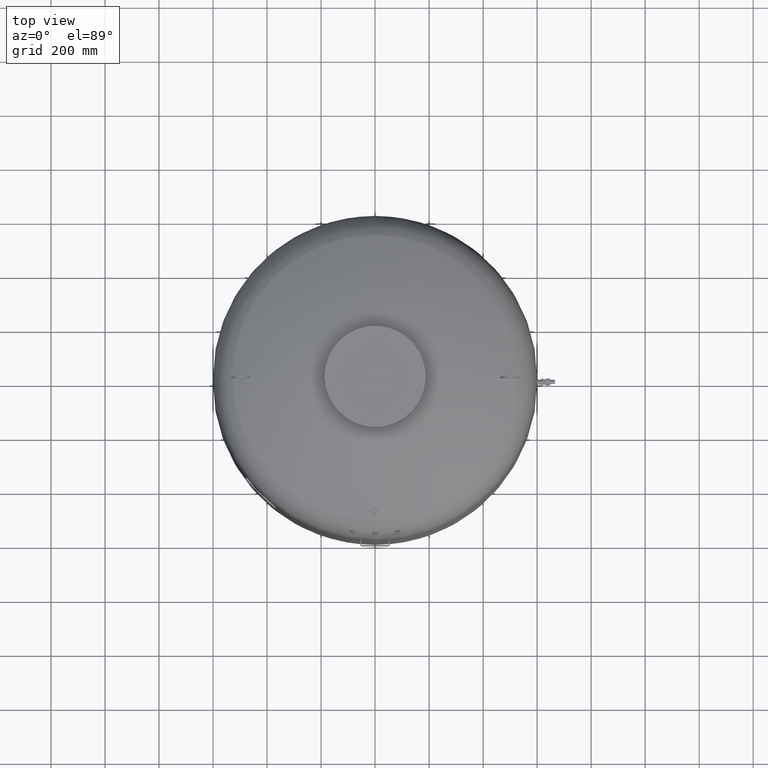
[diagram: clean part render]
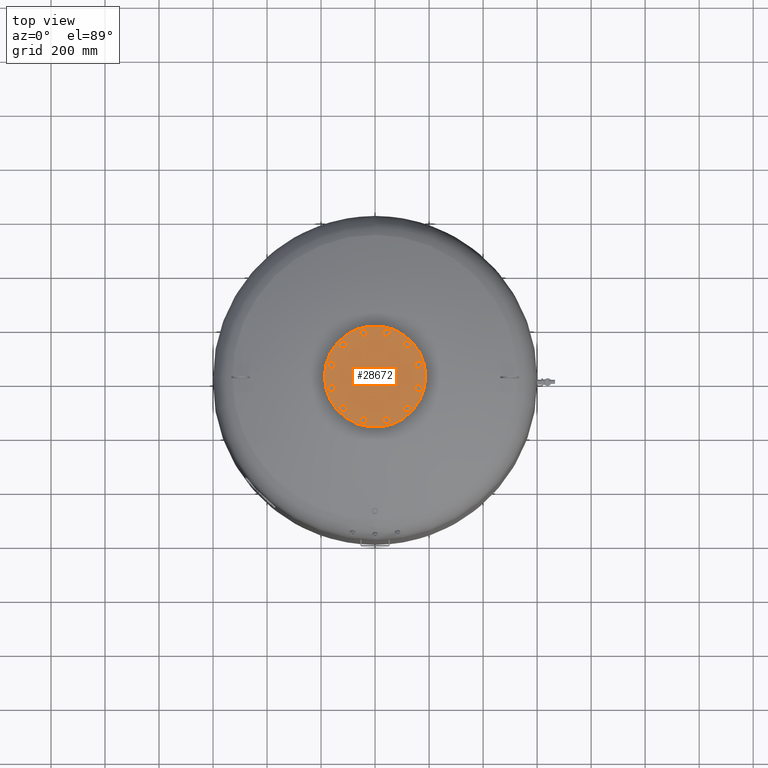
[diagram: same view with one face highlighted and labeled with its STEP entity id]
A machine part, top view. The second image highlights one B-rep face of the part: STEP entity #28672.
In plain terms, the highlighted planar face has unit normal (0, 0, 1).
Its self-contained STEP definition (entity closure, byte-faithful):
#20910=CARTESIAN_POINT('',(-187.500000000000000,0.0,2050.0));
#20911=VERTEX_POINT('',#20910);
#20927=CARTESIAN_POINT('',(187.500000000000000,-2.296137E-014,2050.0));
#20928=VERTEX_POINT('',#20927);
#20935=CARTESIAN_POINT('',(0.0,0.0,2050.0));
#20936=DIRECTION('',(0.0,0.0,-1.0));
#20937=DIRECTION('',(-1.0,0.0,0.0));
#20938=AXIS2_PLACEMENT_3D('',#20935,#20936,#20937);
#20939=CIRCLE('',#20938,187.500000000000000);
#20940=EDGE_CURVE('',#20928,#20911,#20939,.T.);
#26166=CARTESIAN_POINT('',(157.729139400922860,30.104983413641008,2050.0));
#26167=VERTEX_POINT('',#26166);
#26168=CARTESIAN_POINT('',(148.288440171855850,40.247625971983268,2050.0));
#26169=VERTEX_POINT('',#26168);
#26170=CARTESIAN_POINT('',(157.729139400922860,30.104983413641008,2050.0));
#26171=DIRECTION('',(-0.681323780155013,0.731982176419128,0.0));
#26172=VECTOR('',#26171,13.856406460551090);
#26173=LINE('',#26170,#26172);
#26174=EDGE_CURVE('',#26167,#26169,#26173,.T.);
#26206=CARTESIAN_POINT('',(171.233275132485970,33.209547496330110,2050.0));
#26207=VERTEX_POINT('',#26206);
#26208=CARTESIAN_POINT('',(171.233275132485970,33.209547496330110,2050.0));
#26209=DIRECTION('',(-0.974577049973894,-0.224052613607123,0.0));
#26210=VECTOR('',#26209,13.856406460551119);
#26211=LINE('',#26208,#26210);
#26212=EDGE_CURVE('',#26207,#26167,#26211,.T.);
#26237=CARTESIAN_POINT('',(175.296711634982050,46.456754137361422,2050.0));
#26238=VERTEX_POINT('',#26237);
#26239=CARTESIAN_POINT('',(175.296711634982050,46.456754137361422,2050.0));
#26240=DIRECTION('',(-0.293253269818881,-0.956034790026249,0.0));
#26241=VECTOR('',#26240,13.856406460551076);
#26242=LINE('',#26239,#26241);
#26243=EDGE_CURVE('',#26238,#26207,#26242,.T.);
#26268=CARTESIAN_POINT('',(152.351876674351930,53.494832613014587,2050.0));
#26269=VERTEX_POINT('',#26268);
#26270=CARTESIAN_POINT('',(148.288440171855850,40.247625971983268,2050.0));
#26271=DIRECTION('',(0.293253269818881,0.956034790026249,0.0));
#26272=VECTOR('',#26271,13.856406460551083);
#26273=LINE('',#26270,#26272);
#26274=EDGE_CURVE('',#26169,#26269,#26273,.T.);
#26299=CARTESIAN_POINT('',(165.856012405915040,56.599396695703689,2050.0));
#26300=VERTEX_POINT('',#26299);
#26301=CARTESIAN_POINT('',(152.351876674351930,53.494832613014587,2050.0));
#26302=DIRECTION('',(0.974577049973894,0.224052613607123,0.0));
#26303=VECTOR('',#26302,13.856406460551119);
#26304=LINE('',#26301,#26303);
#26305=EDGE_CURVE('',#26269,#26300,#26304,.T.);
#26330=CARTESIAN_POINT('',(165.856012405915040,56.599396695703689,2050.0));
#26331=DIRECTION('',(0.681323780155012,-0.731982176419129,0.0));
#26332=VECTOR('',#26331,13.856406460551096);
#26333=LINE('',#26330,#26332);
#26334=EDGE_CURVE('',#26300,#26238,#26333,.T.);
#26366=CARTESIAN_POINT('',(121.544949931435720,104.936250117183760,2050.0));
#26367=VERTEX_POINT('',#26366);
#26368=CARTESIAN_POINT('',(108.297743290404380,108.999686619679820,2050.0));
#26369=VERTEX_POINT('',#26368);
#26370=CARTESIAN_POINT('',(121.544949931435720,104.936250117183760,2050.0));
#26371=DIRECTION('',(-0.956034790026250,0.293253269818880,0.0));
#26372=VECTOR('',#26371,13.856406460551101);
#26373=LINE('',#26370,#26372);
#26374=EDGE_CURVE('',#26367,#26369,#26373,.T.);
#26406=CARTESIAN_POINT('',(131.687592489777960,114.376949346250780,2050.0));
#26407=VERTEX_POINT('',#26406);
#26408=CARTESIAN_POINT('',(131.687592489777960,114.376949346250780,2050.0));
#26409=DIRECTION('',(-0.731982176419127,-0.681323780155014,0.0));
#26410=VECTOR('',#26409,13.856406460551080);
#26411=LINE('',#26408,#26410);
#26412=EDGE_CURVE('',#26407,#26367,#26411,.T.);
#26437=CARTESIAN_POINT('',(128.583028407088880,127.881085077813880,2050.0));
#26438=VERTEX_POINT('',#26437);
#26439=CARTESIAN_POINT('',(128.583028407088880,127.881085077813880,2050.0));
#26440=DIRECTION('',(0.224052613607122,-0.974577049973894,0.0));
#26441=VECTOR('',#26440,13.856406460551099);
#26442=LINE('',#26439,#26441);
#26443=EDGE_CURVE('',#26438,#26407,#26442,.T.);
#26468=CARTESIAN_POINT('',(105.193179207715300,122.503822351242900,2050.0));
#26469=VERTEX_POINT('',#26468);
#26470=CARTESIAN_POINT('',(108.297743290404380,108.999686619679820,2050.0));
#26471=DIRECTION('',(-0.224052613607122,0.974577049973894,0.0));
#26472=VECTOR('',#26471,13.856406460551087);
#26473=LINE('',#26470,#26472);
#26474=EDGE_CURVE('',#26369,#26469,#26473,.T.);
#26499=CARTESIAN_POINT('',(115.335821766057560,131.944521580309950,2050.0));
#26500=VERTEX_POINT('',#26499);
#26501=CARTESIAN_POINT('',(105.193179207715300,122.503822351242900,2050.0));
#26502=DIRECTION('',(0.731982176419127,0.681323780155014,0.0));
#26503=VECTOR('',#26502,13.856406460551121);
#26504=LINE('',#26501,#26503);
#26505=EDGE_CURVE('',#26469,#26500,#26504,.T.);
#26530=CARTESIAN_POINT('',(115.335821766057560,131.944521580309950,2050.0));
#26531=DIRECTION('',(0.956034790026249,-0.293253269818881,0.0));
#26532=VECTOR('',#26531,13.856406460551076);
#26533=LINE('',#26530,#26532);
#26534=EDGE_CURVE('',#26500,#26438,#26533,.T.);
#26566=CARTESIAN_POINT('',(52.792889283739193,151.649933345076730,2050.0));
#26567=VERTEX_POINT('',#26566);
#26568=CARTESIAN_POINT('',(39.288753552176118,148.545369262387680,2050.0));
#26569=VERTEX_POINT('',#26568);
#26570=CARTESIAN_POINT('',(52.792889283739193,151.649933345076730,2050.0));
#26571=DIRECTION('',(-0.974577049973894,-0.224052613607120,0.0));
#26572=VECTOR('',#26571,13.856406460551073);
#26573=LINE('',#26570,#26572);
#26574=EDGE_CURVE('',#26567,#26569,#26573,.T.);
#26606=CARTESIAN_POINT('',(56.856325786235274,164.897139986108100,2050.0));
#26607=VERTEX_POINT('',#26606);
#26608=CARTESIAN_POINT('',(56.856325786235274,164.897139986108100,2050.0));
#26609=DIRECTION('',(-0.293253269818881,-0.956034790026249,0.0));
#26610=VECTOR('',#26609,13.856406460551133);
#26611=LINE('',#26608,#26610);
#26612=EDGE_CURVE('',#26607,#26567,#26611,.T.);
#26637=CARTESIAN_POINT('',(47.415626557168267,175.039782544450330,2050.0));
#26638=VERTEX_POINT('',#26637);
#26639=CARTESIAN_POINT('',(47.415626557168267,175.039782544450330,2050.0));
#26640=DIRECTION('',(0.681323780155014,-0.731982176419128,0.0));
#26641=VECTOR('',#26640,13.856406460551069);
#26642=LINE('',#26639,#26641);
#26643=EDGE_CURVE('',#26638,#26607,#26642,.T.);
#26668=CARTESIAN_POINT('',(29.848054323109103,158.688011820729910,2050.0));
#26669=VERTEX_POINT('',#26668);
#26670=CARTESIAN_POINT('',(39.288753552176118,148.545369262387680,2050.0));
#26671=DIRECTION('',(-0.681323780155014,0.731982176419127,0.0));
#26672=VECTOR('',#26671,13.856406460551076);
#26673=LINE('',#26670,#26672);
#26674=EDGE_CURVE('',#26569,#26669,#26673,.T.);
#26699=CARTESIAN_POINT('',(33.911490825605156,171.935218461761250,2050.0));
#26700=VERTEX_POINT('',#26699);
#26701=CARTESIAN_POINT('',(29.848054323109103,158.688011820729910,2050.0));
#26702=DIRECTION('',(0.293253269818879,0.956034790026250,0.0));
#26703=VECTOR('',#26702,13.856406460551097);
#26704=LINE('',#26701,#26703);
#26705=EDGE_CURVE('',#26669,#26700,#26704,.T.);
#26730=CARTESIAN_POINT('',(33.911490825605156,171.935218461761250,2050.0));
#26731=DIRECTION('',(0.974577049973894,0.224052613607121,0.0));
#26732=VECTOR('',#26731,13.856406460551113);
#26733=LINE('',#26730,#26732);
#26734=EDGE_CURVE('',#26700,#26638,#26733,.T.);
#26766=CARTESIAN_POINT('',(-30.104983413641008,157.729139400922860,2050.0));
#26767=VERTEX_POINT('',#26766);
#26768=CARTESIAN_POINT('',(-40.247625971983268,148.288440171855850,2050.0));
#26769=VERTEX_POINT('',#26768);
#26770=CARTESIAN_POINT('',(-30.104983413641008,157.729139400922860,2050.0));
#26771=DIRECTION('',(-0.731982176419128,-0.681323780155013,0.0));
#26772=VECTOR('',#26771,13.856406460551090);
#26773=LINE('',#26770,#26772);
#26774=EDGE_CURVE('',#26767,#26769,#26773,.T.);
#26806=CARTESIAN_POINT('',(-33.209547496330110,171.233275132485970,2050.0));
#26807=VERTEX_POINT('',#26806);
#26808=CARTESIAN_POINT('',(-33.209547496330110,171.233275132485970,2050.0));
#26809=DIRECTION('',(0.224052613607123,-0.974577049973894,0.0));
#26810=VECTOR('',#26809,13.856406460551119);
#26811=LINE('',#26808,#26810);
#26812=EDGE_CURVE('',#26807,#26767,#26811,.T.);
#26837=CARTESIAN_POINT('',(-46.456754137361422,175.296711634982050,2050.0));
#26838=VERTEX_POINT('',#26837);
#26839=CARTESIAN_POINT('',(-46.456754137361422,175.296711634982050,2050.0));
#26840=DIRECTION('',(0.956034790026249,-0.293253269818881,0.0));
#26841=VECTOR('',#26840,13.856406460551076);
#26842=LINE('',#26839,#26841);
#26843=EDGE_CURVE('',#26838,#26807,#26842,.T.);
#26868=CARTESIAN_POINT('',(-53.494832613014587,152.351876674351930,2050.0));
#26869=VERTEX_POINT('',#26868);
#26870=CARTESIAN_POINT('',(-40.247625971983268,148.288440171855850,2050.0));
#26871=DIRECTION('',(-0.956034790026249,0.293253269818881,0.0));
#26872=VECTOR('',#26871,13.856406460551083);
#26873=LINE('',#26870,#26872);
#26874=EDGE_CURVE('',#26769,#26869,#26873,.T.);
#26899=CARTESIAN_POINT('',(-56.599396695703689,165.856012405915040,2050.0));
#26900=VERTEX_POINT('',#26899);
#26901=CARTESIAN_POINT('',(-53.494832613014587,152.351876674351930,2050.0));
#26902=DIRECTION('',(-0.224052613607123,0.974577049973894,0.0));
#26903=VECTOR('',#26902,13.856406460551119);
#26904=LINE('',#26901,#26903);
#26905=EDGE_CURVE('',#26869,#26900,#26904,.T.);
#26930=CARTESIAN_POINT('',(-56.599396695703689,165.856012405915040,2050.0));
#26931=DIRECTION('',(0.731982176419129,0.681323780155012,0.0));
#26932=VECTOR('',#26931,13.856406460551096);
#26933=LINE('',#26930,#26932);
#26934=EDGE_CURVE('',#26900,#26838,#26933,.T.);
#26966=CARTESIAN_POINT('',(-104.936250117183700,121.544949931435750,2050.0));
#26967=VERTEX_POINT('',#26966);
#26968=CARTESIAN_POINT('',(-108.999686619679760,108.297743290404440,2050.0));
#26969=VERTEX_POINT('',#26968);
#26970=CARTESIAN_POINT('',(-104.936250117183700,121.544949931435750,2050.0));
#26971=DIRECTION('',(-0.293253269818880,-0.956034790026249,0.0));
#26972=VECTOR('',#26971,13.856406460551073);
#26973=LINE('',#26970,#26972);
#26974=EDGE_CURVE('',#26967,#26969,#26973,.T.);
#27006=CARTESIAN_POINT('',(-114.376949346250730,131.687592489778010,2050.0));
#27007=VERTEX_POINT('',#27006);
#27008=CARTESIAN_POINT('',(-114.376949346250730,131.687592489778010,2050.0));
#27009=DIRECTION('',(0.681323780155013,-0.731982176419128,0.0));
#27010=VECTOR('',#27009,13.856406460551101);
#27011=LINE('',#27008,#27010);
#27012=EDGE_CURVE('',#27007,#26967,#27011,.T.);
#27037=CARTESIAN_POINT('',(-127.881085077813810,128.583028407088930,2050.0));
#27038=VERTEX_POINT('',#27037);
#27039=CARTESIAN_POINT('',(-127.881085077813810,128.583028407088930,2050.0));
#27040=DIRECTION('',(0.974577049973894,0.224052613607122,0.0));
#27041=VECTOR('',#27040,13.856406460551087);
#27042=LINE('',#27039,#27041);
#27043=EDGE_CURVE('',#27038,#27007,#27042,.T.);
#27068=CARTESIAN_POINT('',(-122.503822351242850,105.193179207715360,2050.0));
#27069=VERTEX_POINT('',#27068);
#27070=CARTESIAN_POINT('',(-108.999686619679760,108.297743290404440,2050.0));
#27071=DIRECTION('',(-0.974577049973894,-0.224052613607122,0.0));
#27072=VECTOR('',#27071,13.856406460551087);
#27073=LINE('',#27070,#27072);
#27074=EDGE_CURVE('',#26969,#27069,#27073,.T.);
#27099=CARTESIAN_POINT('',(-131.944521580309900,115.335821766057620,2050.0));
#27100=VERTEX_POINT('',#27099);
#27101=CARTESIAN_POINT('',(-122.503822351242850,105.193179207715360,2050.0));
#27102=DIRECTION('',(-0.681323780155014,0.731982176419127,0.0));
#27103=VECTOR('',#27102,13.856406460551121);
#27104=LINE('',#27101,#27103);
#27105=EDGE_CURVE('',#27069,#27100,#27104,.T.);
#27130=CARTESIAN_POINT('',(-131.944521580309900,115.335821766057620,2050.0));
#27131=DIRECTION('',(0.293253269818882,0.956034790026249,0.0));
#27132=VECTOR('',#27131,13.856406460551081);
#27133=LINE('',#27130,#27132);
#27134=EDGE_CURVE('',#27100,#27038,#27133,.T.);
#27166=CARTESIAN_POINT('',(-151.649933345076730,52.792889283739214,2050.0));
#27167=VERTEX_POINT('',#27166);
#27168=CARTESIAN_POINT('',(-148.545369262387650,39.288753552176125,2050.0));
#27169=VERTEX_POINT('',#27168);
#27170=CARTESIAN_POINT('',(-151.649933345076730,52.792889283739214,2050.0));
#27171=DIRECTION('',(0.224052613607122,-0.974577049973894,0.0));
#27172=VECTOR('',#27171,13.856406460551092);
#27173=LINE('',#27170,#27172);
#27174=EDGE_CURVE('',#27167,#27169,#27173,.T.);
#27206=CARTESIAN_POINT('',(-164.897139986108100,56.856325786235296,2050.0));
#27207=VERTEX_POINT('',#27206);
#27208=CARTESIAN_POINT('',(-164.897139986108100,56.856325786235296,2050.0));
#27209=DIRECTION('',(0.956034790026249,-0.293253269818881,0.0));
#27210=VECTOR('',#27209,13.856406460551133);
#27211=LINE('',#27208,#27210);
#27212=EDGE_CURVE('',#27207,#27167,#27211,.T.);
#27237=CARTESIAN_POINT('',(-175.039782544450300,47.415626557168260,2050.0));
#27238=VERTEX_POINT('',#27237);
#27239=CARTESIAN_POINT('',(-175.039782544450300,47.415626557168260,2050.0));
#27240=DIRECTION('',(0.731982176419126,0.681323780155016,0.0));
#27241=VECTOR('',#27240,13.856406460551069);
#27242=LINE('',#27239,#27241);
#27243=EDGE_CURVE('',#27238,#27207,#27242,.T.);
#27268=CARTESIAN_POINT('',(-158.688011820729910,29.848054323109110,2050.0));
#27269=VERTEX_POINT('',#27268);
#27270=CARTESIAN_POINT('',(-148.545369262387650,39.288753552176125,2050.0));
#27271=DIRECTION('',(-0.731982176419128,-0.681323780155013,0.0));
#27272=VECTOR('',#27271,13.856406460551096);
#27273=LINE('',#27270,#27272);
#27274=EDGE_CURVE('',#27169,#27269,#27273,.T.);
#27299=CARTESIAN_POINT('',(-171.935218461761250,33.911490825605171,2050.0));
#27300=VERTEX_POINT('',#27299);
#27301=CARTESIAN_POINT('',(-158.688011820729910,29.848054323109110,2050.0));
#27302=DIRECTION('',(-0.956034790026250,0.293253269818880,0.0));
#27303=VECTOR('',#27302,13.856406460551101);
#27304=LINE('',#27301,#27303);
#27305=EDGE_CURVE('',#27269,#27300,#27304,.T.);
#27330=CARTESIAN_POINT('',(-171.935218461761250,33.911490825605171,2050.0));
#27331=DIRECTION('',(-0.224052613607120,0.974577049973894,0.0));
#27332=VECTOR('',#27331,13.856406460551087);
#27333=LINE('',#27330,#27332);
#27334=EDGE_CURVE('',#27300,#27238,#27333,.T.);
#27366=CARTESIAN_POINT('',(-157.729139400922860,-30.104983413640987,2050.0));
#27367=VERTEX_POINT('',#27366);
#27368=CARTESIAN_POINT('',(-148.288440171855850,-40.247625971983247,2050.0));
#27369=VERTEX_POINT('',#27368);
#27370=CARTESIAN_POINT('',(-157.729139400922860,-30.104983413640987,2050.0));
#27371=DIRECTION('',(0.681323780155013,-0.731982176419128,0.0));
#27372=VECTOR('',#27371,13.856406460551090);
#27373=LINE('',#27370,#27372);
#27374=EDGE_CURVE('',#27367,#27369,#27373,.T.);
#27406=CARTESIAN_POINT('',(-171.233275132486000,-33.209547496330096,2050.0));
#27407=VERTEX_POINT('',#27406);
#27408=CARTESIAN_POINT('',(-171.233275132486000,-33.209547496330096,2050.0));
#27409=DIRECTION('',(0.974577049973894,0.224052613607123,0.0));
#27410=VECTOR('',#27409,13.856406460551147);
#27411=LINE('',#27408,#27410);
#27412=EDGE_CURVE('',#27407,#27367,#27411,.T.);
#27437=CARTESIAN_POINT('',(-175.296711634982050,-46.456754137361401,2050.0));
#27438=VERTEX_POINT('',#27437);
#27439=CARTESIAN_POINT('',(-175.296711634982050,-46.456754137361401,2050.0));
#27440=DIRECTION('',(0.293253269818880,0.956034790026250,0.0));
#27441=VECTOR('',#27440,13.856406460551062);
#27442=LINE('',#27439,#27441);
#27443=EDGE_CURVE('',#27438,#27407,#27442,.T.);
#27468=CARTESIAN_POINT('',(-152.351876674351960,-53.494832613014580,2050.0));
#27469=VERTEX_POINT('',#27468);
#27470=CARTESIAN_POINT('',(-148.288440171855850,-40.247625971983247,2050.0));
#27471=DIRECTION('',(-0.293253269818883,-0.956034790026249,0.0));
#27472=VECTOR('',#27471,13.856406460551106);
#27473=LINE('',#27470,#27472);
#27474=EDGE_CURVE('',#27369,#27469,#27473,.T.);
#27499=CARTESIAN_POINT('',(-165.856012405915070,-56.599396695703646,2050.0));
#27500=VERTEX_POINT('',#27499);
#27501=CARTESIAN_POINT('',(-152.351876674351960,-53.494832613014580,2050.0));
#27502=DIRECTION('',(-0.974577049973894,-0.224052613607121,0.0));
#27503=VECTOR('',#27502,13.856406460551110);
#27504=LINE('',#27501,#27503);
#27505=EDGE_CURVE('',#27469,#27500,#27504,.T.);
#27530=CARTESIAN_POINT('',(-165.856012405915070,-56.599396695703646,2050.0));
#27531=DIRECTION('',(-0.681323780155012,0.731982176419129,0.0));
#27532=VECTOR('',#27531,13.856406460551062);
#27533=LINE('',#27530,#27532);
#27534=EDGE_CURVE('',#27500,#27438,#27533,.T.);
#27566=CARTESIAN_POINT('',(-121.544949931435750,-104.936250117183680,2050.0));
#27567=VERTEX_POINT('',#27566);
#27568=CARTESIAN_POINT('',(-108.297743290404440,-108.999686619679760,2050.0));
#27569=VERTEX_POINT('',#27568);
#27570=CARTESIAN_POINT('',(-121.544949931435750,-104.936250117183680,2050.0));
#27571=DIRECTION('',(0.956034790026249,-0.293253269818882,0.0));
#27572=VECTOR('',#27571,13.856406460551081);
#27573=LINE('',#27570,#27572);
#27574=EDGE_CURVE('',#27567,#27569,#27573,.T.);
#27606=CARTESIAN_POINT('',(-131.687592489778010,-114.376949346250730,2050.0));
#27607=VERTEX_POINT('',#27606);
#27608=CARTESIAN_POINT('',(-131.687592489778010,-114.376949346250730,2050.0));
#27609=DIRECTION('',(0.731982176419127,0.681323780155014,0.0));
#27610=VECTOR('',#27609,13.856406460551121);
#27611=LINE('',#27608,#27610);
#27612=EDGE_CURVE('',#27607,#27567,#27611,.T.);
#27637=CARTESIAN_POINT('',(-128.583028407088930,-127.881085077813790,2050.0));
#27638=VERTEX_POINT('',#27637);
#27639=CARTESIAN_POINT('',(-128.583028407088930,-127.881085077813790,2050.0));
#27640=DIRECTION('',(-0.224052613607122,0.974577049973894,0.0));
#27641=VECTOR('',#27640,13.856406460551071);
#27642=LINE('',#27639,#27641);
#27643=EDGE_CURVE('',#27638,#27607,#27642,.T.);
#27668=CARTESIAN_POINT('',(-105.193179207715360,-122.503822351242850,2050.0));
#27669=VERTEX_POINT('',#27668);
#27670=CARTESIAN_POINT('',(-108.297743290404440,-108.999686619679760,2050.0));
#27671=DIRECTION('',(0.224052613607122,-0.974577049973894,0.0));
#27672=VECTOR('',#27671,13.856406460551087);
#27673=LINE('',#27670,#27672);
#27674=EDGE_CURVE('',#27569,#27669,#27673,.T.);
#27699=CARTESIAN_POINT('',(-115.335821766057620,-131.944521580309900,2050.0));
#27700=VERTEX_POINT('',#27699);
#27701=CARTESIAN_POINT('',(-105.193179207715360,-122.503822351242850,2050.0));
#27702=DIRECTION('',(-0.731982176419127,-0.681323780155014,0.0));
#27703=VECTOR('',#27702,13.856406460551121);
#27704=LINE('',#27701,#27703);
#27705=EDGE_CURVE('',#27669,#27700,#27704,.T.);
#27730=CARTESIAN_POINT('',(-115.335821766057620,-131.944521580309900,2050.0));
#27731=DIRECTION('',(-0.956034790026249,0.293253269818883,0.0));
#27732=VECTOR('',#27731,13.856406460551085);
#27733=LINE('',#27730,#27732);
#27734=EDGE_CURVE('',#27700,#27638,#27733,.T.);
#27766=CARTESIAN_POINT('',(-52.792889283739228,-151.649933345076730,2050.0));
#27767=VERTEX_POINT('',#27766);
#27768=CARTESIAN_POINT('',(-39.288753552176132,-148.545369262387680,2050.0));
#27769=VERTEX_POINT('',#27768);
#27770=CARTESIAN_POINT('',(-52.792889283739228,-151.649933345076730,2050.0));
#27771=DIRECTION('',(0.974577049973894,0.224052613607120,0.0));
#27772=VECTOR('',#27771,13.856406460551094);
#27773=LINE('',#27770,#27772);
#27774=EDGE_CURVE('',#27767,#27769,#27773,.T.);
#27806=CARTESIAN_POINT('',(-56.856325786235296,-164.897139986108100,2050.0));
#27807=VERTEX_POINT('',#27806);
#27808=CARTESIAN_POINT('',(-56.856325786235296,-164.897139986108100,2050.0));
#27809=DIRECTION('',(0.293253269818880,0.956034790026250,0.0));
#27810=VECTOR('',#27809,13.856406460551129);
#27811=LINE('',#27808,#27810);
#27812=EDGE_CURVE('',#27807,#27767,#27811,.T.);
#27837=CARTESIAN_POINT('',(-47.415626557168281,-175.039782544450300,2050.0));
#27838=VERTEX_POINT('',#27837);
#27839=CARTESIAN_POINT('',(-47.415626557168281,-175.039782544450300,2050.0));
#27840=DIRECTION('',(-0.681323780155015,0.731982176419126,0.0));
#27841=VECTOR('',#27840,13.856406460551055);
#27842=LINE('',#27839,#27841);
#27843=EDGE_CURVE('',#27838,#27807,#27842,.T.);
#27868=CARTESIAN_POINT('',(-29.848054323109121,-158.688011820729910,2050.0));
#27869=VERTEX_POINT('',#27868);
#27870=CARTESIAN_POINT('',(-39.288753552176132,-148.545369262387680,2050.0));
#27871=DIRECTION('',(0.681323780155014,-0.731982176419127,0.0));
#27872=VECTOR('',#27871,13.856406460551073);
#27873=LINE('',#27870,#27872);
#27874=EDGE_CURVE('',#27769,#27869,#27873,.T.);
#27899=CARTESIAN_POINT('',(-33.911490825605199,-171.935218461761280,2050.0));
#27900=VERTEX_POINT('',#27899);
#27901=CARTESIAN_POINT('',(-29.848054323109121,-158.688011820729910,2050.0));
#27902=DIRECTION('',(-0.293253269818880,-0.956034790026249,0.0));
#27903=VECTOR('',#27902,13.856406460551133);
#27904=LINE('',#27901,#27903);
#27905=EDGE_CURVE('',#27869,#27900,#27904,.T.);
#27930=CARTESIAN_POINT('',(-33.911490825605199,-171.935218461761280,2050.0));
#27931=DIRECTION('',(-0.974577049973895,-0.224052613607118,0.0));
#27932=VECTOR('',#27931,13.856406460551074);
#27933=LINE('',#27930,#27932);
#27934=EDGE_CURVE('',#27900,#27838,#27933,.T.);
#27966=CARTESIAN_POINT('',(30.104983413640952,-157.729139400922890,2050.0));
#27967=VERTEX_POINT('',#27966);
#27968=CARTESIAN_POINT('',(40.247625971983211,-148.288440171855880,2050.0));
#27969=VERTEX_POINT('',#27968);
#27970=CARTESIAN_POINT('',(30.104983413640952,-157.729139400922890,2050.0));
#27971=DIRECTION('',(0.731982176419128,0.681323780155013,0.0));
#27972=VECTOR('',#27971,13.856406460551090);
#27973=LINE('',#27970,#27972);
#27974=EDGE_CURVE('',#27967,#27969,#27973,.T.);
#28006=CARTESIAN_POINT('',(33.209547496330039,-171.233275132486000,2050.0));
#28007=VERTEX_POINT('',#28006);
#28008=CARTESIAN_POINT('',(33.209547496330039,-171.233275132486000,2050.0));
#28009=DIRECTION('',(-0.224052613607122,0.974577049973894,0.0));
#28010=VECTOR('',#28009,13.856406460551115);
#28011=LINE('',#28008,#28010);
#28012=EDGE_CURVE('',#28007,#27967,#28011,.T.);
#28037=CARTESIAN_POINT('',(46.456754137361351,-175.296711634982070,2050.0));
#28038=VERTEX_POINT('',#28037);
#28039=CARTESIAN_POINT('',(46.456754137361351,-175.296711634982070,2050.0));
#28040=DIRECTION('',(-0.956034790026249,0.293253269818881,0.0));
#28041=VECTOR('',#28040,13.856406460551076);
#28042=LINE('',#28039,#28041);
#28043=EDGE_CURVE('',#28038,#28007,#28042,.T.);
#28068=CARTESIAN_POINT('',(53.494832613014523,-152.351876674351960,2050.0));
#28069=VERTEX_POINT('',#28068);
#28070=CARTESIAN_POINT('',(40.247625971983211,-148.288440171855880,2050.0));
#28071=DIRECTION('',(0.956034790026249,-0.293253269818881,0.0));
#28072=VECTOR('',#28071,13.856406460551076);
#28073=LINE('',#28070,#28072);
#28074=EDGE_CURVE('',#27969,#28069,#28073,.T.);
#28099=CARTESIAN_POINT('',(56.599396695703625,-165.856012405915070,2050.0));
#28100=VERTEX_POINT('',#28099);
#28101=CARTESIAN_POINT('',(53.494832613014523,-152.351876674351960,2050.0));
#28102=DIRECTION('',(0.224052613607123,-0.974577049973894,0.0));
#28103=VECTOR('',#28102,13.856406460551119);
#28104=LINE('',#28101,#28103);
#28105=EDGE_CURVE('',#28069,#28100,#28104,.T.);
#28130=CARTESIAN_POINT('',(56.599396695703625,-165.856012405915070,2050.0));
#28131=DIRECTION('',(-0.731982176419129,-0.681323780155012,0.0));
#28132=VECTOR('',#28131,13.856406460551101);
#28133=LINE('',#28130,#28132);
#28134=EDGE_CURVE('',#28100,#28038,#28133,.T.);
#28166=CARTESIAN_POINT('',(104.936250117183660,-121.544949931435800,2050.0));
#28167=VERTEX_POINT('',#28166);
#28168=CARTESIAN_POINT('',(108.999686619679750,-108.297743290404470,2050.0));
#28169=VERTEX_POINT('',#28168);
#28170=CARTESIAN_POINT('',(104.936250117183660,-121.544949931435800,2050.0));
#28171=DIRECTION('',(0.293253269818882,0.956034790026249,0.0));
#28172=VECTOR('',#28171,13.856406460551094);
#28173=LINE('',#28170,#28172);
#28174=EDGE_CURVE('',#28167,#28169,#28173,.T.);
#28206=CARTESIAN_POINT('',(114.376949346250710,-131.687592489778040,2050.0));
#28207=VERTEX_POINT('',#28206);
#28208=CARTESIAN_POINT('',(114.376949346250710,-131.687592489778040,2050.0));
#28209=DIRECTION('',(-0.681323780155015,0.731982176419126,0.0));
#28210=VECTOR('',#28209,13.856406460551110);
#28211=LINE('',#28208,#28210);
#28212=EDGE_CURVE('',#28207,#28167,#28211,.T.);
#28237=CARTESIAN_POINT('',(127.881085077813760,-128.583028407088960,2050.0));
#28238=VERTEX_POINT('',#28237);
#28239=CARTESIAN_POINT('',(127.881085077813760,-128.583028407088960,2050.0));
#28240=DIRECTION('',(-0.974577049973894,-0.224052613607122,0.0));
#28241=VECTOR('',#28240,13.856406460551058);
#28242=LINE('',#28239,#28241);
#28243=EDGE_CURVE('',#28238,#28207,#28242,.T.);
#28268=CARTESIAN_POINT('',(122.503822351242830,-105.193179207715390,2050.0));
#28269=VERTEX_POINT('',#28268);
#28270=CARTESIAN_POINT('',(108.999686619679750,-108.297743290404470,2050.0));
#28271=DIRECTION('',(0.974577049973894,0.224052613607122,0.0));
#28272=VECTOR('',#28271,13.856406460551087);
#28273=LINE('',#28270,#28272);
#28274=EDGE_CURVE('',#28169,#28269,#28273,.T.);
#28299=CARTESIAN_POINT('',(131.944521580309870,-115.335821766057650,2050.0));
#28300=VERTEX_POINT('',#28299);
#28301=CARTESIAN_POINT('',(122.503822351242830,-105.193179207715390,2050.0));
#28302=DIRECTION('',(0.681323780155014,-0.731982176419127,0.0));
#28303=VECTOR('',#28302,13.856406460551110);
#28304=LINE('',#28301,#28303);
#28305=EDGE_CURVE('',#28269,#28300,#28304,.T.);
#28330=CARTESIAN_POINT('',(131.944521580309870,-115.335821766057650,2050.0));
#28331=DIRECTION('',(-0.293253269818883,-0.956034790026249,0.0));
#28332=VECTOR('',#28331,13.856406460551085);
#28333=LINE('',#28330,#28332);
#28334=EDGE_CURVE('',#28300,#28238,#28333,.T.);
#28366=CARTESIAN_POINT('',(151.649933345076730,-52.792889283739228,2050.0));
#28367=VERTEX_POINT('',#28366);
#28368=CARTESIAN_POINT('',(148.545369262387650,-39.288753552176139,2050.0));
#28369=VERTEX_POINT('',#28368);
#28370=CARTESIAN_POINT('',(151.649933345076730,-52.792889283739228,2050.0));
#28371=DIRECTION('',(-0.224052613607122,0.974577049973894,0.0));
#28372=VECTOR('',#28371,13.856406460551092);
#28373=LINE('',#28370,#28372);
#28374=EDGE_CURVE('',#28367,#28369,#28373,.T.);
#28406=CARTESIAN_POINT('',(164.897139986108070,-56.856325786235303,2050.0));
#28407=VERTEX_POINT('',#28406);
#28408=CARTESIAN_POINT('',(164.897139986108070,-56.856325786235303,2050.0));
#28409=DIRECTION('',(-0.956034790026249,0.293253269818881,0.0));
#28410=VECTOR('',#28409,13.856406460551105);
#28411=LINE('',#28408,#28410);
#28412=EDGE_CURVE('',#28407,#28367,#28411,.T.);
#28437=CARTESIAN_POINT('',(175.039782544450300,-47.415626557168295,2050.0));
#28438=VERTEX_POINT('',#28437);
#28439=CARTESIAN_POINT('',(175.039782544450300,-47.415626557168295,2050.0));
#28440=DIRECTION('',(-0.731982176419128,-0.681323780155014,0.0));
#28441=VECTOR('',#28440,13.856406460551069);
#28442=LINE('',#28439,#28441);
#28443=EDGE_CURVE('',#28438,#28407,#28442,.T.);
#28468=CARTESIAN_POINT('',(158.688011820729910,-29.848054323109132,2050.0));
#28469=VERTEX_POINT('',#28468);
#28470=CARTESIAN_POINT('',(148.545369262387650,-39.288753552176139,2050.0));
#28471=DIRECTION('',(0.731982176419128,0.681323780155013,0.0));
#28472=VECTOR('',#28471,13.856406460551090);
#28473=LINE('',#28470,#28472);
#28474=EDGE_CURVE('',#28369,#28469,#28473,.T.);
#28499=CARTESIAN_POINT('',(171.935218461761250,-33.911490825605206,2050.0));
#28500=VERTEX_POINT('',#28499);
#28501=CARTESIAN_POINT('',(158.688011820729910,-29.848054323109132,2050.0));
#28502=DIRECTION('',(0.956034790026249,-0.293253269818881,0.0));
#28503=VECTOR('',#28502,13.856406460551105);
#28504=LINE('',#28501,#28503);
#28505=EDGE_CURVE('',#28469,#28500,#28504,.T.);
#28530=CARTESIAN_POINT('',(171.935218461761250,-33.911490825605206,2050.0));
#28531=DIRECTION('',(0.224052613607120,-0.974577049973894,0.0));
#28532=VECTOR('',#28531,13.856406460551087);
#28533=LINE('',#28530,#28532);
#28534=EDGE_CURVE('',#28500,#28438,#28533,.T.);
#28561=CARTESIAN_POINT('',(-93.750000000000000,-7.888609E-031,2050.0));
#28562=DIRECTION('',(0.0,0.0,1.0));
#28563=DIRECTION('',(0.0,1.0,0.0));
#28564=AXIS2_PLACEMENT_3D('',#28561,#28562,#28563);
#28565=PLANE('',#28564);
#28566=CARTESIAN_POINT('',(0.0,0.0,2050.0));
#28567=DIRECTION('',(0.0,0.0,-1.0));
#28568=DIRECTION('',(-1.0,0.0,0.0));
#28569=AXIS2_PLACEMENT_3D('',#28566,#28567,#28568);
#28570=CIRCLE('',#28569,187.500000000000000);
#28571=EDGE_CURVE('',#20911,#20928,#28570,.T.);
#28572=ORIENTED_EDGE('',*,*,#28571,.F.);
#28573=ORIENTED_EDGE('',*,*,#20940,.F.);
#28574=EDGE_LOOP('',(#28572,#28573));
#28575=FACE_OUTER_BOUND('',#28574,.T.);
#28576=ORIENTED_EDGE('',*,*,#26174,.T.);
#28577=ORIENTED_EDGE('',*,*,#26274,.T.);
#28578=ORIENTED_EDGE('',*,*,#26305,.T.);
#28579=ORIENTED_EDGE('',*,*,#26334,.T.);
#28580=ORIENTED_EDGE('',*,*,#26243,.T.);
#28581=ORIENTED_EDGE('',*,*,#26212,.T.);
#28582=EDGE_LOOP('',(#28576,#28577,#28578,#28579,#28580,#28581));
#28583=FACE_BOUND('',#28582,.T.);
#28584=ORIENTED_EDGE('',*,*,#26374,.T.);
#28585=ORIENTED_EDGE('',*,*,#26474,.T.);
#28586=ORIENTED_EDGE('',*,*,#26505,.T.);
#28587=ORIENTED_EDGE('',*,*,#26534,.T.);
#28588=ORIENTED_EDGE('',*,*,#26443,.T.);
#28589=ORIENTED_EDGE('',*,*,#26412,.T.);
#28590=EDGE_LOOP('',(#28584,#28585,#28586,#28587,#28588,#28589));
#28591=FACE_BOUND('',#28590,.T.);
#28592=ORIENTED_EDGE('',*,*,#26574,.T.);
#28593=ORIENTED_EDGE('',*,*,#26674,.T.);
#28594=ORIENTED_EDGE('',*,*,#26705,.T.);
#28595=ORIENTED_EDGE('',*,*,#26734,.T.);
#28596=ORIENTED_EDGE('',*,*,#26643,.T.);
#28597=ORIENTED_EDGE('',*,*,#26612,.T.);
#28598=EDGE_LOOP('',(#28592,#28593,#28594,#28595,#28596,#28597));
#28599=FACE_BOUND('',#28598,.T.);
#28600=ORIENTED_EDGE('',*,*,#26774,.T.);
#28601=ORIENTED_EDGE('',*,*,#26874,.T.);
#28602=ORIENTED_EDGE('',*,*,#26905,.T.);
#28603=ORIENTED_EDGE('',*,*,#26934,.T.);
#28604=ORIENTED_EDGE('',*,*,#26843,.T.);
#28605=ORIENTED_EDGE('',*,*,#26812,.T.);
#28606=EDGE_LOOP('',(#28600,#28601,#28602,#28603,#28604,#28605));
#28607=FACE_BOUND('',#28606,.T.);
#28608=ORIENTED_EDGE('',*,*,#26974,.T.);
#28609=ORIENTED_EDGE('',*,*,#27074,.T.);
#28610=ORIENTED_EDGE('',*,*,#27105,.T.);
#28611=ORIENTED_EDGE('',*,*,#27134,.T.);
#28612=ORIENTED_EDGE('',*,*,#27043,.T.);
#28613=ORIENTED_EDGE('',*,*,#27012,.T.);
#28614=EDGE_LOOP('',(#28608,#28609,#28610,#28611,#28612,#28613));
#28615=FACE_BOUND('',#28614,.T.);
#28616=ORIENTED_EDGE('',*,*,#27174,.T.);
#28617=ORIENTED_EDGE('',*,*,#27274,.T.);
#28618=ORIENTED_EDGE('',*,*,#27305,.T.);
#28619=ORIENTED_EDGE('',*,*,#27334,.T.);
#28620=ORIENTED_EDGE('',*,*,#27243,.T.);
#28621=ORIENTED_EDGE('',*,*,#27212,.T.);
#28622=EDGE_LOOP('',(#28616,#28617,#28618,#28619,#28620,#28621));
#28623=FACE_BOUND('',#28622,.T.);
#28624=ORIENTED_EDGE('',*,*,#27374,.T.);
#28625=ORIENTED_EDGE('',*,*,#27474,.T.);
#28626=ORIENTED_EDGE('',*,*,#27505,.T.);
#28627=ORIENTED_EDGE('',*,*,#27534,.T.);
#28628=ORIENTED_EDGE('',*,*,#27443,.T.);
#28629=ORIENTED_EDGE('',*,*,#27412,.T.);
#28630=EDGE_LOOP('',(#28624,#28625,#28626,#28627,#28628,#28629));
#28631=FACE_BOUND('',#28630,.T.);
#28632=ORIENTED_EDGE('',*,*,#27574,.T.);
#28633=ORIENTED_EDGE('',*,*,#27674,.T.);
#28634=ORIENTED_EDGE('',*,*,#27705,.T.);
#28635=ORIENTED_EDGE('',*,*,#27734,.T.);
#28636=ORIENTED_EDGE('',*,*,#27643,.T.);
#28637=ORIENTED_EDGE('',*,*,#27612,.T.);
#28638=EDGE_LOOP('',(#28632,#28633,#28634,#28635,#28636,#28637));
#28639=FACE_BOUND('',#28638,.T.);
#28640=ORIENTED_EDGE('',*,*,#27774,.T.);
#28641=ORIENTED_EDGE('',*,*,#27874,.T.);
#28642=ORIENTED_EDGE('',*,*,#27905,.T.);
#28643=ORIENTED_EDGE('',*,*,#27934,.T.);
#28644=ORIENTED_EDGE('',*,*,#27843,.T.);
#28645=ORIENTED_EDGE('',*,*,#27812,.T.);
#28646=EDGE_LOOP('',(#28640,#28641,#28642,#28643,#28644,#28645));
#28647=FACE_BOUND('',#28646,.T.);
#28648=ORIENTED_EDGE('',*,*,#27974,.T.);
#28649=ORIENTED_EDGE('',*,*,#28074,.T.);
#28650=ORIENTED_EDGE('',*,*,#28105,.T.);
#28651=ORIENTED_EDGE('',*,*,#28134,.T.);
#28652=ORIENTED_EDGE('',*,*,#28043,.T.);
#28653=ORIENTED_EDGE('',*,*,#28012,.T.);
#28654=EDGE_LOOP('',(#28648,#28649,#28650,#28651,#28652,#28653));
#28655=FACE_BOUND('',#28654,.T.);
#28656=ORIENTED_EDGE('',*,*,#28174,.T.);
#28657=ORIENTED_EDGE('',*,*,#28274,.T.);
#28658=ORIENTED_EDGE('',*,*,#28305,.T.);
#28659=ORIENTED_EDGE('',*,*,#28334,.T.);
#28660=ORIENTED_EDGE('',*,*,#28243,.T.);
#28661=ORIENTED_EDGE('',*,*,#28212,.T.);
#28662=EDGE_LOOP('',(#28656,#28657,#28658,#28659,#28660,#28661));
#28663=FACE_BOUND('',#28662,.T.);
#28664=ORIENTED_EDGE('',*,*,#28374,.T.);
#28665=ORIENTED_EDGE('',*,*,#28474,.T.);
#28666=ORIENTED_EDGE('',*,*,#28505,.T.);
#28667=ORIENTED_EDGE('',*,*,#28534,.T.);
#28668=ORIENTED_EDGE('',*,*,#28443,.T.);
#28669=ORIENTED_EDGE('',*,*,#28412,.T.);
#28670=EDGE_LOOP('',(#28664,#28665,#28666,#28667,#28668,#28669));
#28671=FACE_BOUND('',#28670,.T.);
#28672=ADVANCED_FACE('',(#28575,#28583,#28591,#28599,#28607,#28615,#28623,#28631,#28639,#28647,#28655,#28663,#28671),#28565,.T.);